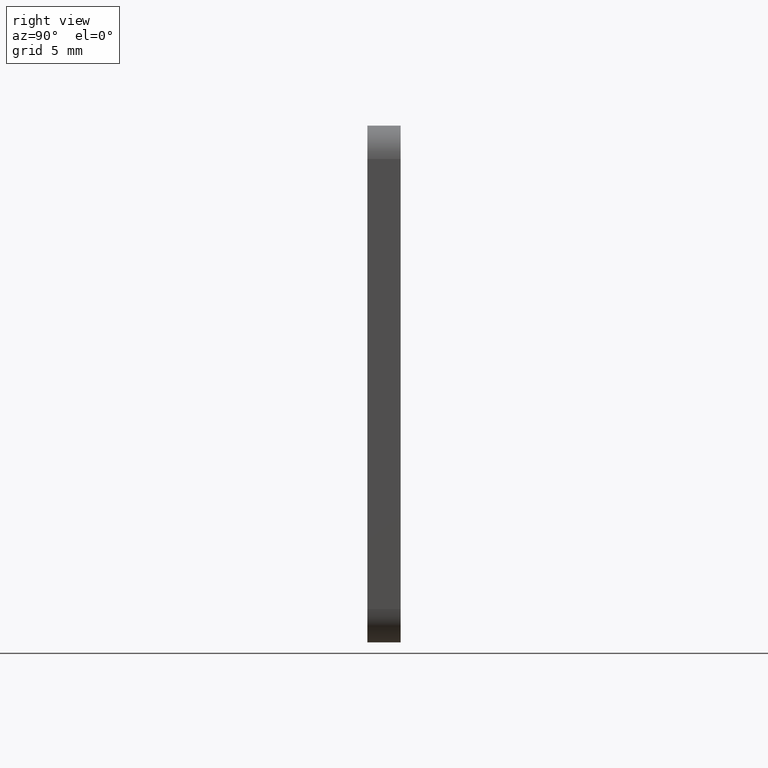
[diagram: clean part render]
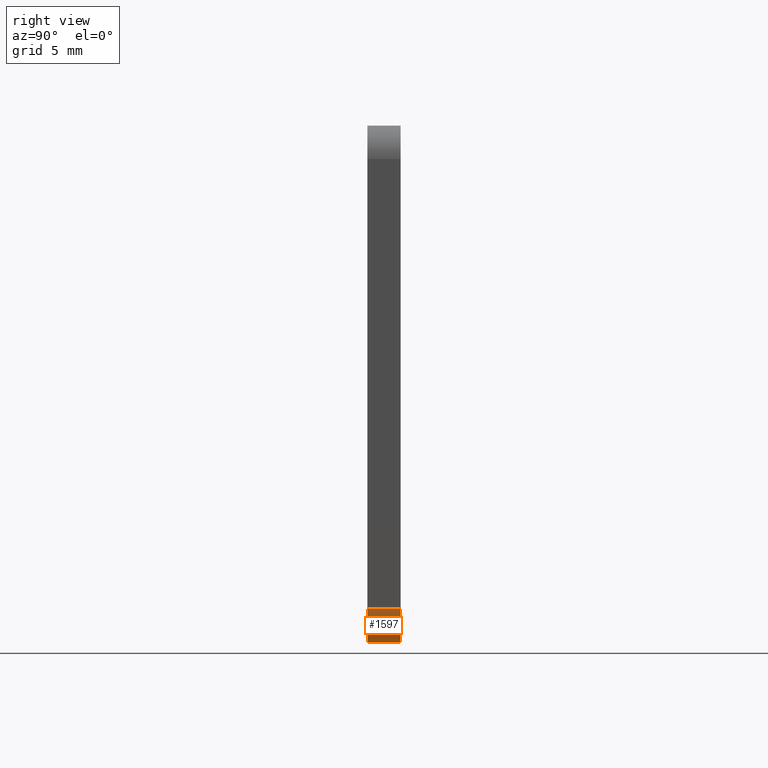
[diagram: same view with one face highlighted and labeled with its STEP entity id]
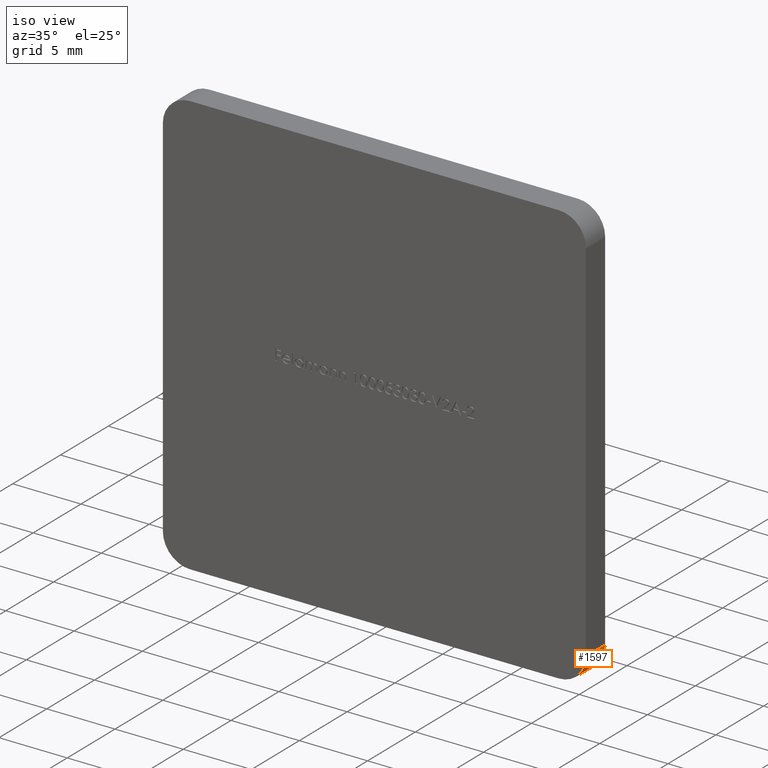
[diagram: same view with one face highlighted and labeled with its STEP entity id]
A machine part, right view. The second image highlights one B-rep face of the part: STEP entity #1597.
A second angle (iso view) of the same face is appended — the face is thin or edge-on in the first view.
In plain terms, the highlighted cylindrical surface (edge-blend (fillet) strip) has radius 2 mm, axis along (0, -1, 0).
Its self-contained STEP definition (entity closure, byte-faithful):
#347 = EDGE_CURVE ( 'NONE', #11307, #9876, #726, .T. ) ;
#555 = EDGE_CURVE ( 'NONE', #2246, #11605, #11881, .T. ) ;
#694 = DIRECTION ( 'NONE',  ( -0.0000000000000000000, -1.000000000000000000, -0.0000000000000000000 ) ) ;
#726 = CIRCLE ( 'NONE', #11272, 2.000000000000000000 ) ;
#1365 = ORIENTED_EDGE ( 'NONE', *, *, #347, .F. ) ;
#1392 = CARTESIAN_POINT ( 'NONE',  ( 13.50000000000000400, 2.000000000000000000, -13.49999999999999800 ) ) ;
#1597 = ADVANCED_FACE ( 'NONE', ( #1760 ), #13979, .T. ) ;
#1760 = FACE_OUTER_BOUND ( 'NONE', #4163, .T. ) ;
#2033 = CARTESIAN_POINT ( 'NONE',  ( 13.50000000000000400, 0.0000000000000000000, -13.49999999999999800 ) ) ;
#2246 = VERTEX_POINT ( 'NONE', #10605 ) ;
#2608 = EDGE_CURVE ( 'NONE', #9876, #2246, #6563, .T. ) ;
#2830 = CARTESIAN_POINT ( 'NONE',  ( 15.50000000000000200, 2.000000000000000000, -13.49999999999999800 ) ) ;
#2920 = AXIS2_PLACEMENT_3D ( 'NONE', #10236, #9100, #15834 ) ;
#3715 = CARTESIAN_POINT ( 'NONE',  ( 13.50000000000000400, 2.000000000000000000, -15.49999999999999800 ) ) ;
#4163 = EDGE_LOOP ( 'NONE', ( #14460, #6868, #1365, #8049 ) ) ;
#6563 = LINE ( 'NONE', #2830, #13348 ) ;
#6657 = DIRECTION ( 'NONE',  ( 0.0000000000000000000, 0.0000000000000000000, 1.000000000000000000 ) ) ;
#6868 = ORIENTED_EDGE ( 'NONE', *, *, #2608, .F. ) ;
#7437 = VECTOR ( 'NONE', #11686, 1000.000000000000000 ) ;
#7540 = DIRECTION ( 'NONE',  ( 0.0000000000000000000, 0.0000000000000000000, 1.000000000000000000 ) ) ;
#8049 = ORIENTED_EDGE ( 'NONE', *, *, #12593, .F. ) ;
#9100 = DIRECTION ( 'NONE',  ( 0.0000000000000000000, -1.000000000000000000, 0.0000000000000000000 ) ) ;
#9876 = VERTEX_POINT ( 'NONE', #17357 ) ;
#10236 = CARTESIAN_POINT ( 'NONE',  ( 13.50000000000000400, 2.000000000000000000, -13.49999999999999800 ) ) ;
#10605 = CARTESIAN_POINT ( 'NONE',  ( 15.50000000000000200, 2.000000000000000000, -13.49999999999999800 ) ) ;
#11056 = AXIS2_PLACEMENT_3D ( 'NONE', #1392, #17331, #6657 ) ;
#11272 = AXIS2_PLACEMENT_3D ( 'NONE', #2033, #694, #7540 ) ;
#11307 = VERTEX_POINT ( 'NONE', #11705 ) ;
#11605 = VERTEX_POINT ( 'NONE', #3715 ) ;
#11686 = DIRECTION ( 'NONE',  ( 0.0000000000000000000, -1.000000000000000000, 0.0000000000000000000 ) ) ;
#11705 = CARTESIAN_POINT ( 'NONE',  ( 13.50000000000000400, 0.0000000000000000000, -15.49999999999999800 ) ) ;
#11881 = CIRCLE ( 'NONE', #11056, 2.000000000000000000 ) ;
#12094 = LINE ( 'NONE', #15756, #7437 ) ;
#12254 = DIRECTION ( 'NONE',  ( -0.0000000000000000000, 1.000000000000000000, -0.0000000000000000000 ) ) ;
#12593 = EDGE_CURVE ( 'NONE', #11605, #11307, #12094, .T. ) ;
#13348 = VECTOR ( 'NONE', #12254, 1000.000000000000000 ) ;
#13979 = CYLINDRICAL_SURFACE ( 'NONE', #2920, 2.000000000000000000 ) ;
#14460 = ORIENTED_EDGE ( 'NONE', *, *, #555, .F. ) ;
#15756 = CARTESIAN_POINT ( 'NONE',  ( 13.50000000000000400, 2.000000000000000000, -15.49999999999999800 ) ) ;
#15834 = DIRECTION ( 'NONE',  ( 0.0000000000000000000, 0.0000000000000000000, -1.000000000000000000 ) ) ;
#17331 = DIRECTION ( 'NONE',  ( 0.0000000000000000000, 1.000000000000000000, 0.0000000000000000000 ) ) ;
#17357 = CARTESIAN_POINT ( 'NONE',  ( 15.50000000000000200, 0.0000000000000000000, -13.49999999999999800 ) ) ;